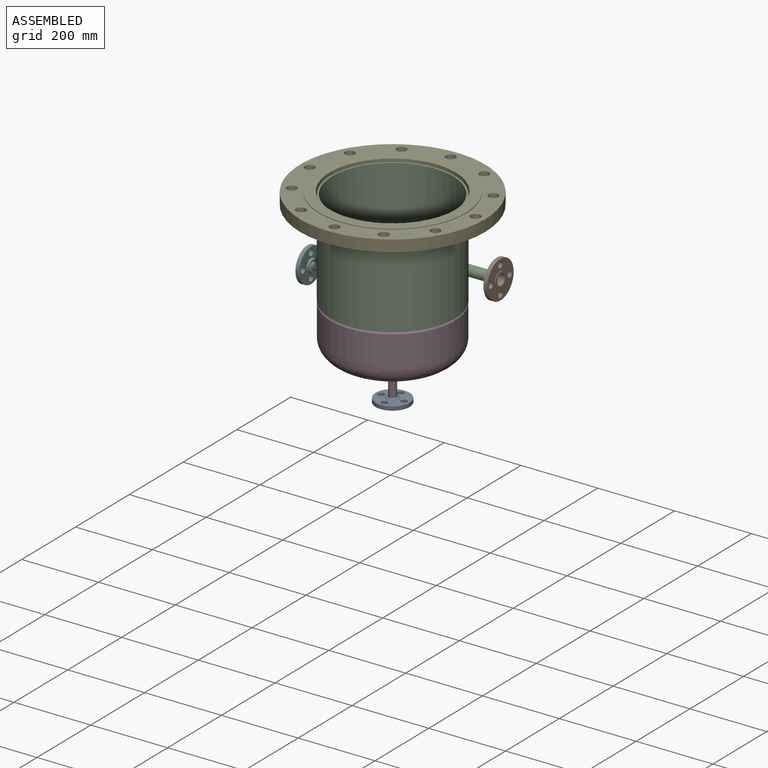
[diagram: assembled view]
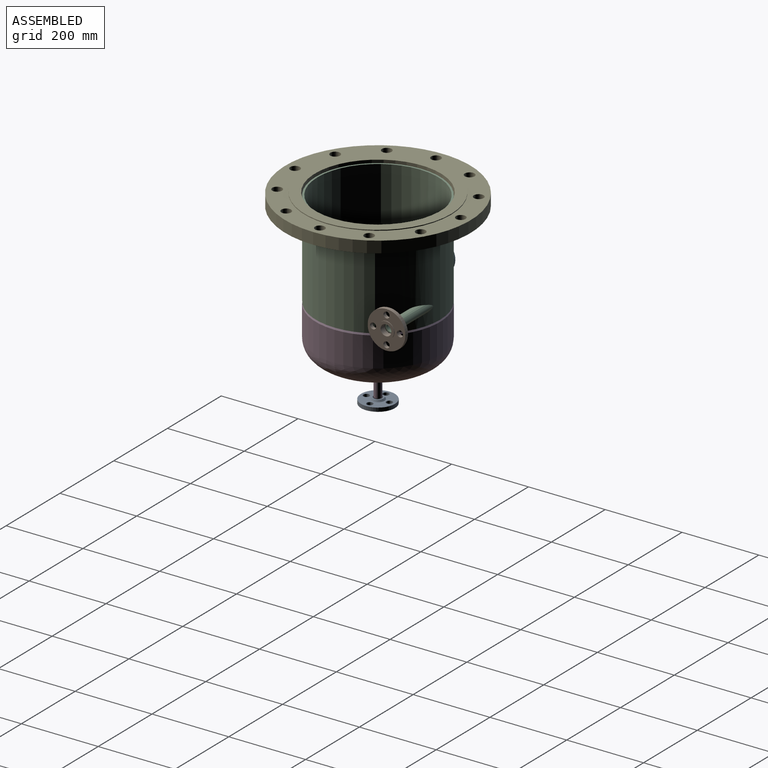
[diagram: assembled view, second angle]
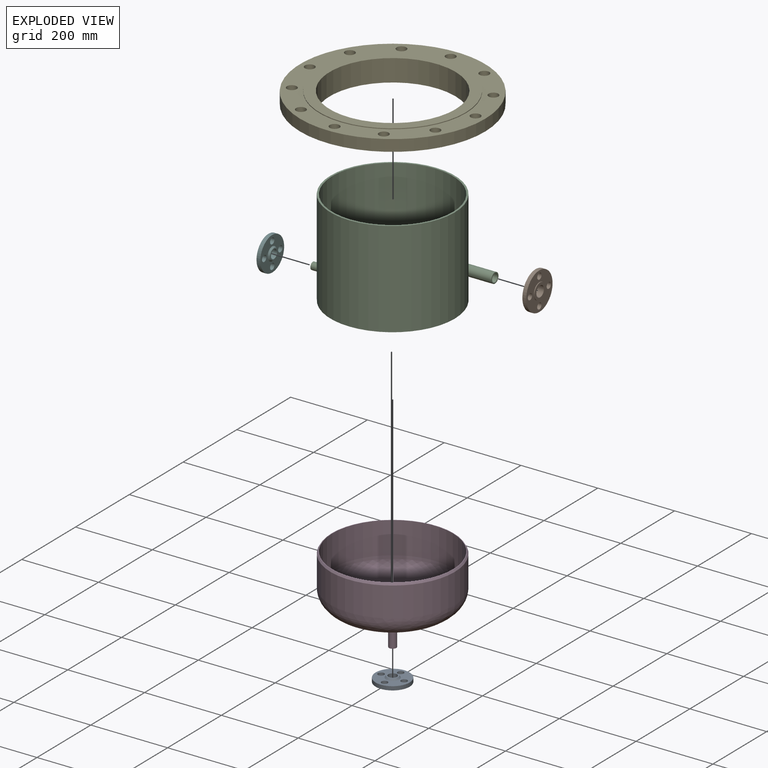
[diagram: exploded view]
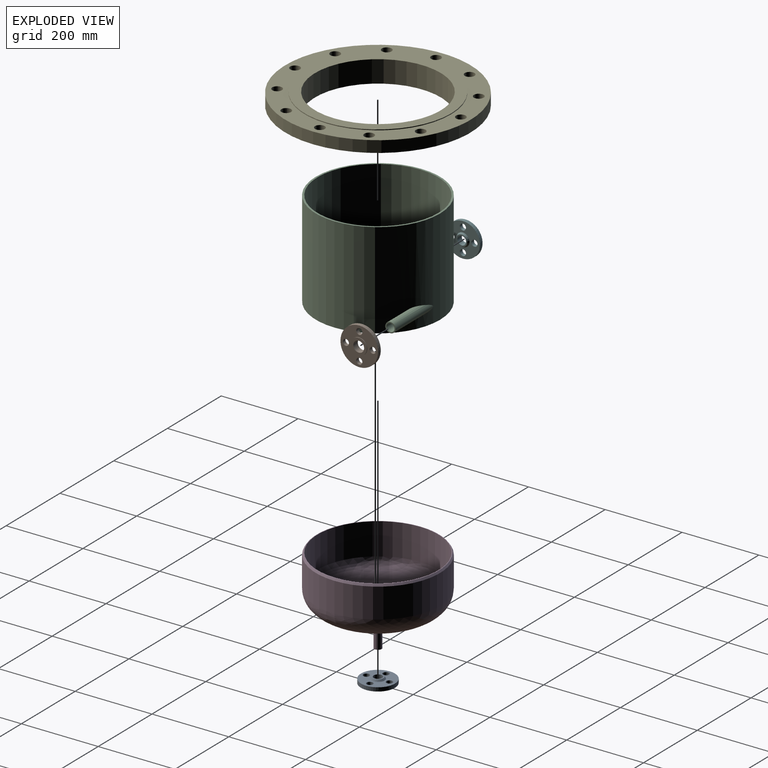
[diagram: exploded view, second angle]
ASSEMBLY  parts=6 mates=5
PART A: 12 faces, bbox 88.5x88.5x16.5 mm
  f0: cylinder r=8mm len=16mm, axis (0,0,-1), area 502.7mm2, adj f5,f6
  f1: cylinder r=8mm len=16mm, axis (0,0,-1), area 502.7mm2, adj f5,f6
  f2: cylinder r=8mm len=16mm, axis (0,0,-1), area 502.7mm2, adj f5,f6
  f3: cylinder r=8mm len=16mm, axis (0,0,-1), area 502.7mm2, adj f5,f6
  f4: cylinder r=44.25mm len=88.5mm, axis (0,0,-1), area 2780.3mm2, adj f5,f6
  f5: plane 88.5x88.5mm, normal (0,0,1), area 4465.8mm2, adj f0,f1,f2,f3,f4,f8
  f6: plane 88.5x88.5mm, normal (0,0,-1), area 4412.4mm2, adj f0,f1,f2,f3,f4,f11
  f7: cylinder r=11.25mm len=22.5mm, axis (0,0,-1), area 1166.3mm2, adj f9,f10
  f8: cylinder r=16.75mm len=33.5mm, axis (0,0,-1), area 210.5mm2, adj f5,f9
  f9: plane 33.5x33.5mm, normal (0,0,1), area 483.8mm2, adj f7,f8
  f10: plane 28.5x28.5mm, normal (0,0,-1), area 240.3mm2, adj f7,f11
  f11: cone r=14.25mm half-angle=33.7deg, axis (0,0,1), area 535.2mm2, adj f6,f10
PART B: 12 faces, bbox 98x98x16.5 mm
  f0: cylinder r=8mm len=16mm, axis (0,0,-1), area 502.7mm2, adj f5,f6
  f1: cylinder r=8mm len=16mm, axis (0,0,-1), area 502.7mm2, adj f5,f6
  f2: cylinder r=8mm len=16mm, axis (0,0,-1), area 502.7mm2, adj f5,f6
  f3: cylinder r=8mm len=16mm, axis (0,0,-1), area 502.7mm2, adj f5,f6
  f4: cylinder r=49mm len=98mm, axis (0,0,-1), area 3078.8mm2, adj f5,f6
  f5: plane 98x98mm, normal (0,0,1), area 5353.3mm2, adj f0,f1,f2,f3,f4,f8
  f6: plane 98x98mm, normal (0,0,-1), area 5482.1mm2, adj f0,f1,f2,f3,f4,f11
  f7: cylinder r=14mm len=28mm, axis (0,0,-1), area 1451.4mm2, adj f9,f10
  f8: cylinder r=21mm len=42mm, axis (0,0,-1), area 263.9mm2, adj f5,f9
  f9: plane 42x42mm, normal (0,0,1), area 769.7mm2, adj f7,f8
  f10: plane 34x34mm, normal (0,0,-1), area 292.2mm2, adj f7,f11
  f11: cone r=17mm half-angle=33.7deg, axis (0,0,1), area 628.7mm2, adj f6,f10
PART C: 15 faces, bbox 372x323.8x250 mm
  f0: cylinder r=161.9mm len=323.8mm, axis (0,0,-1), area 252635.2mm2, adj f3,f5,f6,f13
  f1: cylinder r=157.33mm len=314.66mm, axis (0,0,-1), area 246850.4mm2, adj f5,f6,f11
  f2: cylinder r=10.46mm len=125.46mm, axis (-1,0,0), area 6444.5mm2, adj f4,f7
  f3: cylinder r=13.33mm len=140.36mm, axis (-1,0,0), area 8394.1mm2, adj f0,f4
  f4: plane 26.67x26.67mm, normal (1,0,0), area 214.6mm2, adj f2,f3
  f5: plane 323.8x323.8mm, normal (0,0,-1), area 4583.2mm2, adj f0,f1
  f6: plane 323.8x323.8mm, normal (0,0,1), area 4583.2mm2, adj f0,f1
  f7: cylinder r=161.9mm len=49.12mm, axis (0,0,-1), area 862.8mm2, adj f2
  f8: torus R=28.5mm, axis (0,-1,0), area 2672.2mm2, adj f9,f11
  f9: plane 19x19mm, normal (0,0,1), area 154.8mm2, adj f8,f10
  f10: torus R=28.5mm, axis (0,-1,0), area 1800.2mm2, adj f9,f12
  f11: cylinder r=9.5mm len=128.83mm, axis (1,0,0), area 7681.1mm2, adj f1,f8
  f12: cylinder r=6.4mm len=180mm, axis (1,0,0), area 7238.2mm2, adj f10,f14
  f13: cylinder r=9.5mm len=46.95mm, axis (1,0,0), area 2790.1mm2, adj f0,f14
  f14: plane 19x19mm, normal (-1,0,0), area 154.8mm2, adj f12,f13
PART D: 11 faces, bbox 323.8x323.8x225 mm
  f0: cylinder r=9.53mm len=73.06mm, axis (0,0,1), area 4372.6mm2, adj f3,f6
  f1: cylinder r=6.4mm len=80mm, axis (0,0,1), area 3217mm2, adj f3,f4
  f2: cylinder r=9.53mm len=19.05mm, axis (0,0,1), area 141.7mm2, adj f4,f5
  f3: plane 19.05x19.05mm, normal (0,0,-1), area 156.3mm2, adj f0,f1
  f4: plane 19.05x19.05mm, normal (0,0,1), area 156.3mm2, adj f1,f2
  f5: revolved ~314.66x314.66mm, area 208909.1mm2, adj f2,f8
  f6: revolved ~323.8x323.8mm, area 224544.1mm2, adj f0,f9
  f7: plane 317.63x317.63mm, normal (0,0,1), area 1473.4mm2, adj f8,f10
  f8: cylinder r=157.33mm len=314.66mm, axis (0,0,1), area 81794.5mm2, adj f5,f7
  f9: cylinder r=161.9mm len=323.8mm, axis (0,0,1), area 78863.6mm2, adj f6,f10
  f10: cone r=158.81mm half-angle=30.6deg, axis (0,0,-1), area 6107.2mm2, adj f7,f9
PART E: 20 faces, bbox 482x482x57.4 mm
  f0: cylinder r=12.7mm len=30mm, axis (0,0,-1), area 2393.9mm2, adj f13,f14
  f1: cylinder r=12.7mm len=30mm, axis (0,0,-1), area 2393.9mm2, adj f13,f14
  f2: cylinder r=12.7mm len=30mm, axis (0,0,-1), area 2393.9mm2, adj f13,f14
  f3: cylinder r=12.7mm len=30mm, axis (0,0,-1), area 2393.9mm2, adj f13,f14
  f4: cylinder r=12.7mm len=30mm, axis (0,0,-1), area 2393.9mm2, adj f13,f14
  f5: cylinder r=12.7mm len=30mm, axis (0,0,-1), area 2393.9mm2, adj f13,f14
  f6: cylinder r=12.7mm len=30mm, axis (0,0,-1), area 2393.9mm2, adj f13,f14
  f7: cylinder r=12.7mm len=30mm, axis (0,0,-1), area 2393.9mm2, adj f13,f14
  f8: cylinder r=12.7mm len=30mm, axis (0,0,-1), area 2393.9mm2, adj f13,f14
  f9: cylinder r=12.7mm len=30mm, axis (0,0,-1), area 2393.9mm2, adj f13,f14
  f10: cylinder r=12.7mm len=30mm, axis (0,0,-1), area 2393.9mm2, adj f13,f14
  f11: cylinder r=12.7mm len=30mm, axis (0,0,-1), area 2393.9mm2, adj f13,f14
  f12: cylinder r=241mm len=482mm, axis (0,0,-1), area 45427.4mm2, adj f13,f14
  f13: plane 482x482mm, normal (0,0,1), area 61777.9mm2, adj f0,f1,f2,f3,f4,f5,f6,f7
  f14: plane 482x482mm, normal (0,0,-1), area 75726.6mm2, adj f0,f1,f2,f3,f4,f5,f6,f7
  f15: cylinder r=164mm len=328mm, axis (0,0,-1), area 59147.4mm2, adj f17,f18
  f16: cylinder r=191mm len=382mm, axis (0,0,-1), area 2400.2mm2, adj f13,f17
  f17: plane 382x382mm, normal (0,0,1), area 30112.2mm2, adj f15,f16
  f18: plane 348x348mm, normal (0,0,-1), area 10618.6mm2, adj f15,f19
  f19: cone r=174mm half-angle=11.1deg, axis (0,0,1), area 28708.7mm2, adj f14,f18
PART F: same geometry as A
PLACE A rot(axis=(1,0,0),180deg) t=(220.19,-277.36,-229.95)mm
PLACE B rot(axis=(0.71,0,0.71),180deg) t=(388.19,-130.46,39.55)mm
PLACE C t=(220.19,-277.36,-0.45)mm
PLACE D t=(220.19,-277.36,-0.45)mm
PLACE E t=(220.19,-277.36,224.65)mm
PLACE F rot(axis=(0.71,0,-0.71),180deg) t=(7.19,-276.24,24.55)mm
MATE fastened A.f11 <-> D.f1  axis (0,0,1) through (220.19,-277.36,-225.45)mm
MATE cylindrical C.f0 <-> E.f15  axis (0,0,-1) through (220.19,-277.36,124.55)mm
MATE fastened D.f8 <-> C.f0  axis (0,0,1) through (220.19,-277.36,-0.45)mm
MATE fastened F.f11 <-> C.f11  axis (1,0,0) through (11.69,-276.24,24.55)mm
MATE fastened B.f11 <-> C.f2  axis (-1,0,0) through (383.69,-130.46,39.55)mm
